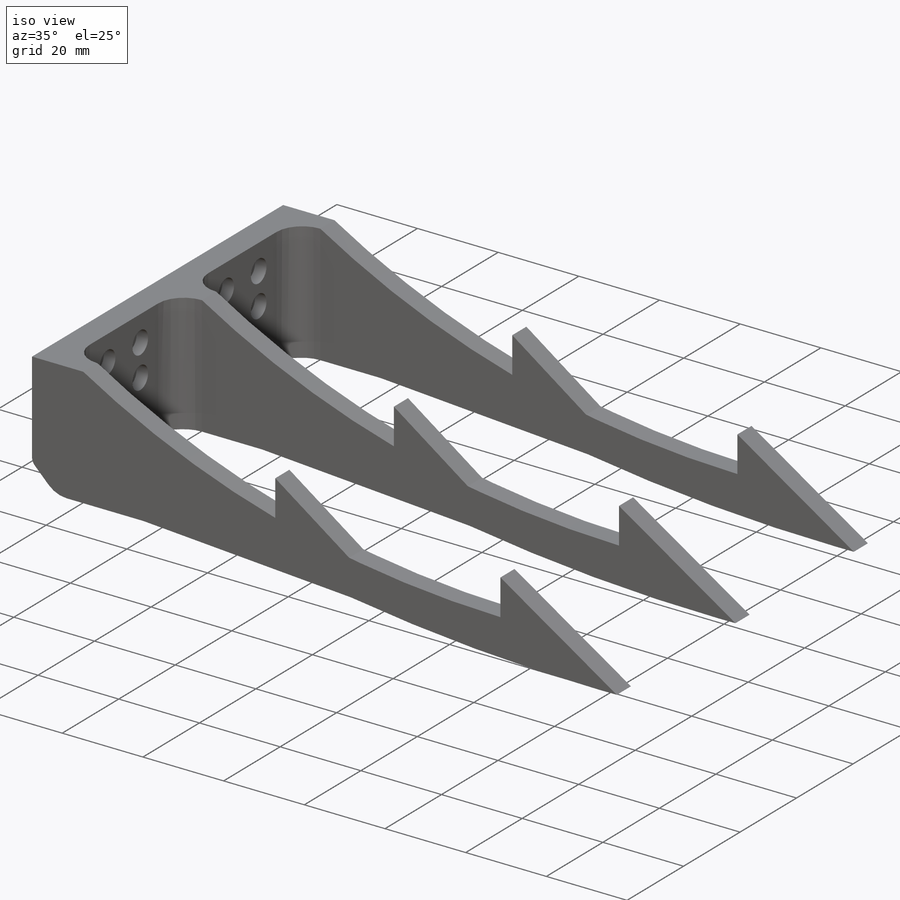
[diagram: iso view]
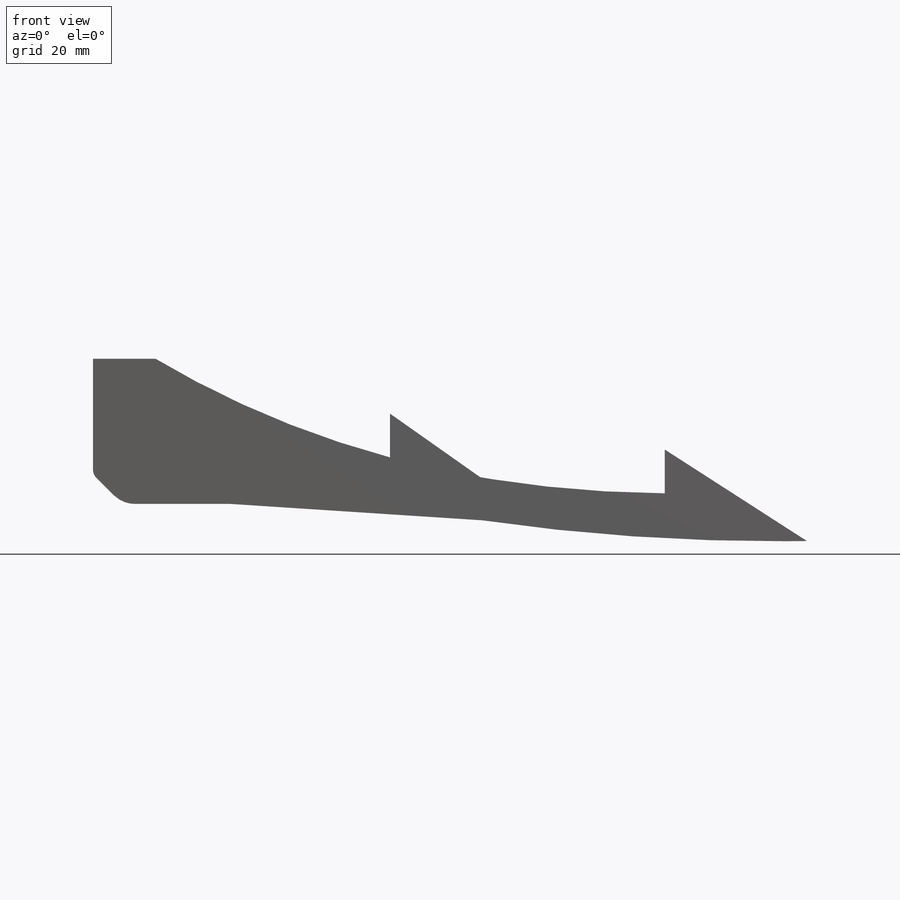
[diagram: front view]
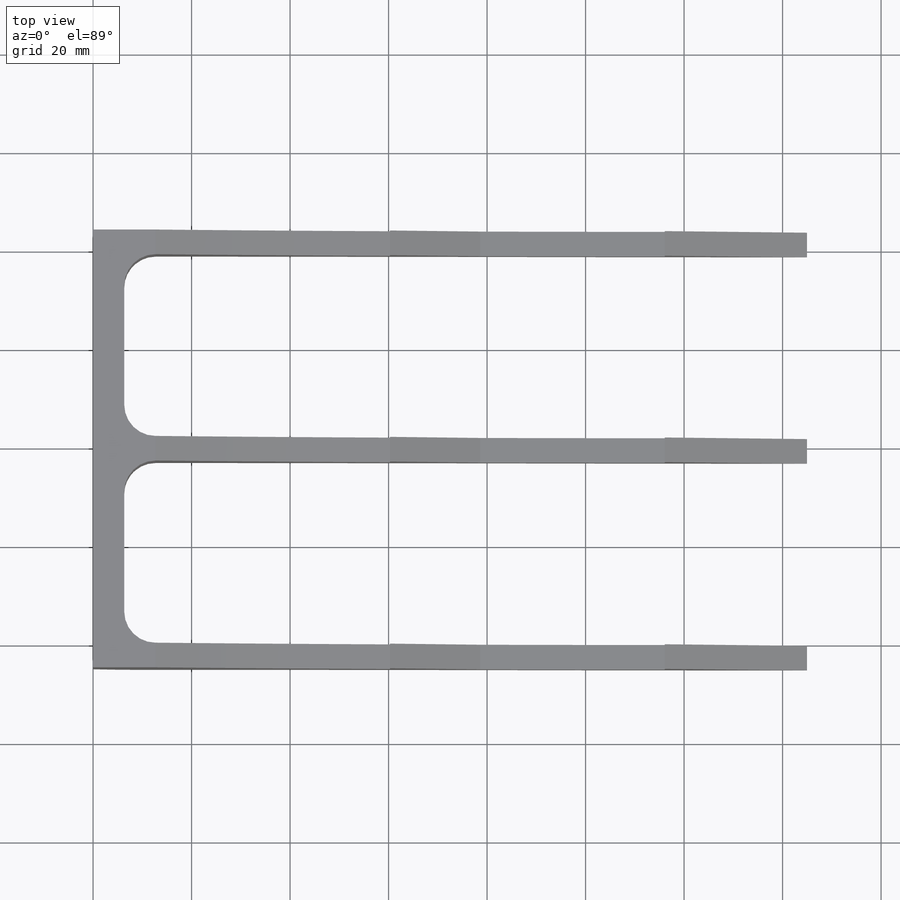
[diagram: top view]
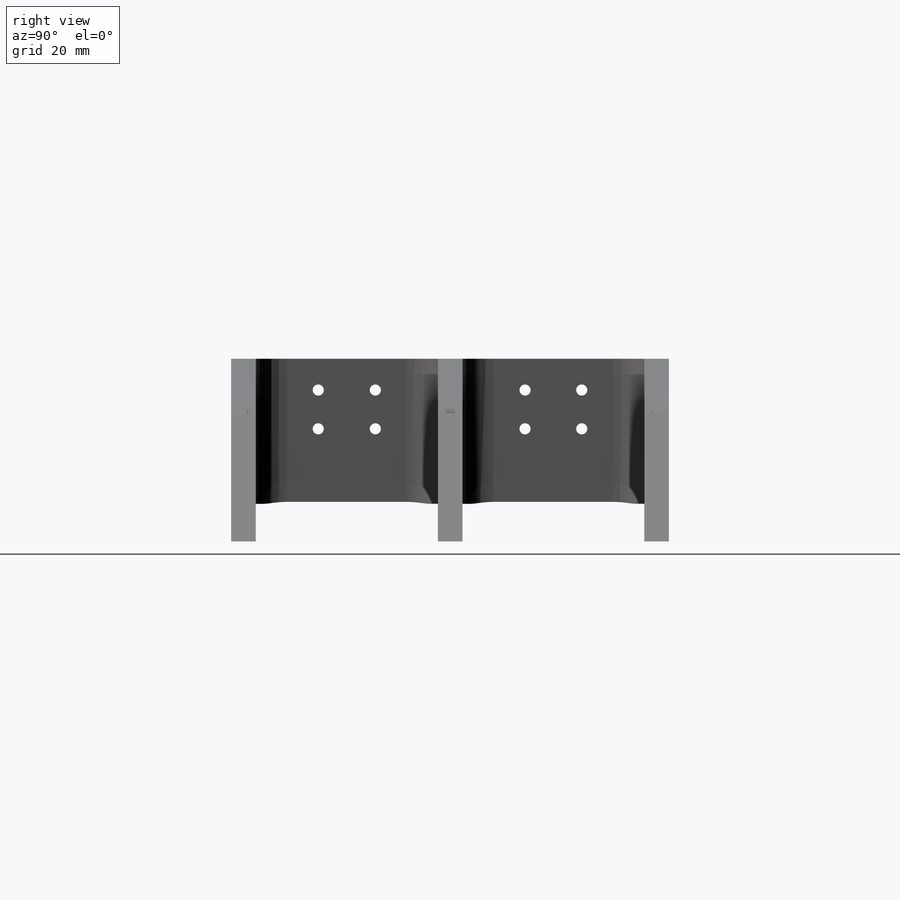
[diagram: right view]
SOLIDWORKS PART (.sldprt)
format: sldprt  version: not decoded by parser v0  size: 592,896 bytes
history: native  units: mm
features: sketch x6, extrude x2, plane x2, mirror x2, material x1, cut_extrude x1, fillet x1, hole x1 (+13 scaffold rows collapsed)
feature tree (29):
  scaffold x13  (default folders/planes/origin — collapsed)
  material  "Material <not specified>"
  sketch  "Sketch1"  dims[c1.D1=12.7mm c1.D2=6.35mm c1.D3=127.0mm c1.D4=25.4mm c1.D5=25.4mm c1.D6=25.4mm c1.D7=12.7mm c1.D8=25.4mm c1.D9=127.0mm c2.D1=25.4mm c2.D2=25.4mm c3.D1=25.4mm c3.D2=~30.660512mm c4.D1=12.7mm c4.D2=12.7mm c4.D3=12.7mm c4.D4=12.7mm c5.D3=8.89mm c5.D4=8.89mm]
  extrude  "Boss-Extrude1"  Depth=5mm
  sketch  "Sketch2"  dims[D1=20.574mm D2=6.35mm]
  extrude  "Boss-Extrude2"  Depth=88.9mm
  plane  "Plane1"  Offset=44.45mm
  mirror  "Mirror1"
  plane  "Plane2"  Offset=20.955mm
  mirror  "Mirror3"
  sketch  "Sketch8"
  cut_extrude  "Cut-Extrude2"  Depth=62.23mm
  fillet  "Fillet1"  Radius=6.35mm
  hole  "CBORE for #4 Socket Head Cap Screw1"  Diameter=2.2606mm Depth=6.331628mm
  sketch  "Sketch3"  dims[D1=6.35mm D2=6.35mm D3=6.35mm D4=6.35mm D5=6.35mm D6=6.35mm D7=6.35mm D8=6.35mm D9=6.35mm D10=6.35mm D11=6.35mm D12=6.35mm]
  sketch  "Sketch4"  dims[Thru Hole Dia.=2.2606mm Thru Hole Depth=~6.331628mm C'Bore Dia.=~5.55752mm C'Bore Depth=2.8448mm]
  sketch  "Sketch7"
decode coverage: 9 of 13 modeling features carry decoded parameters
note: ~ marks probable driven/reference dimensions
note: suppression state not decoded; provenance and decode notes live in map.json
